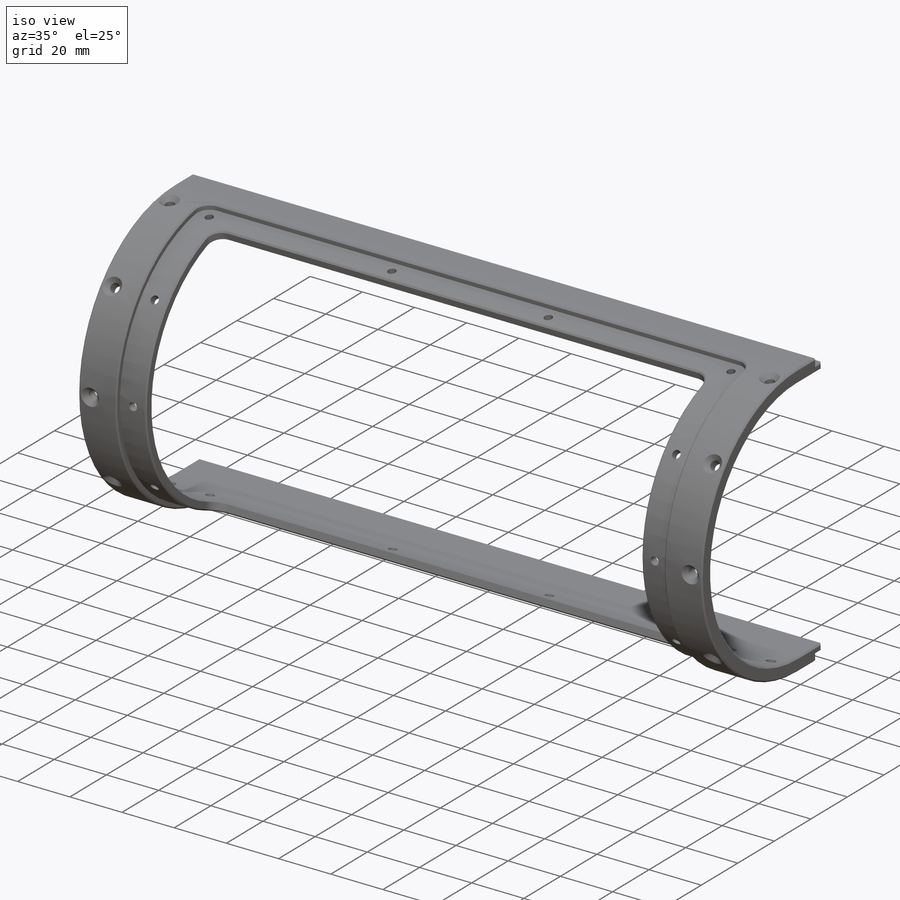
[diagram: iso view]
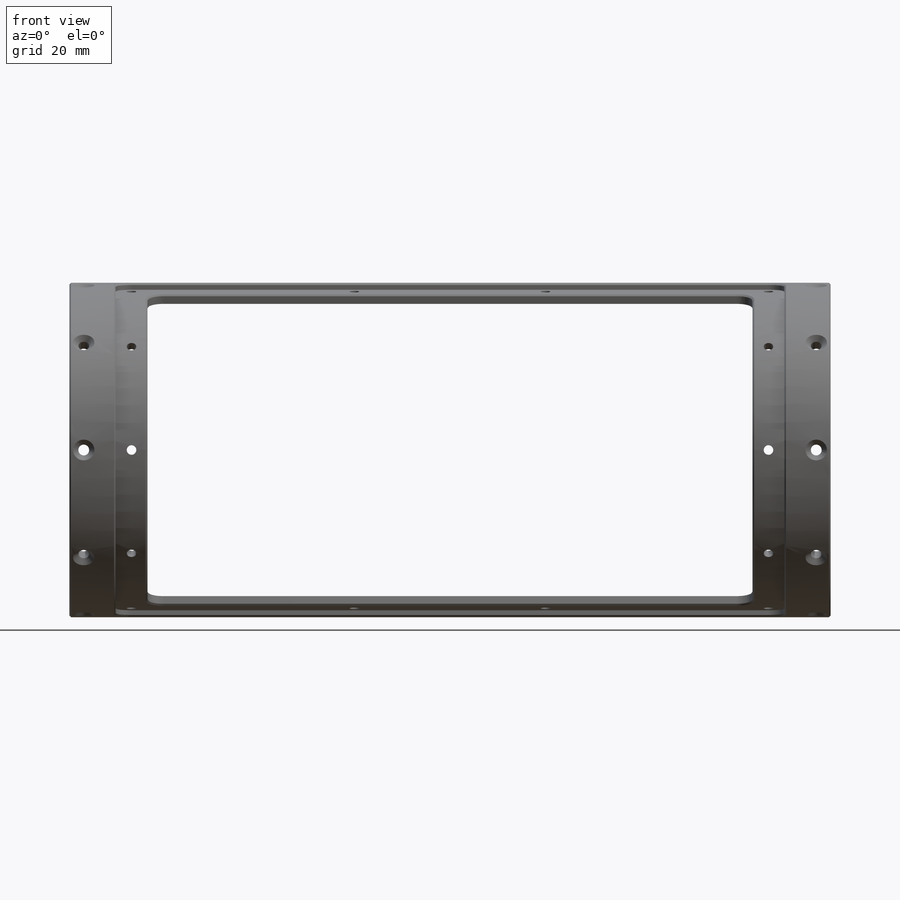
[diagram: front view]
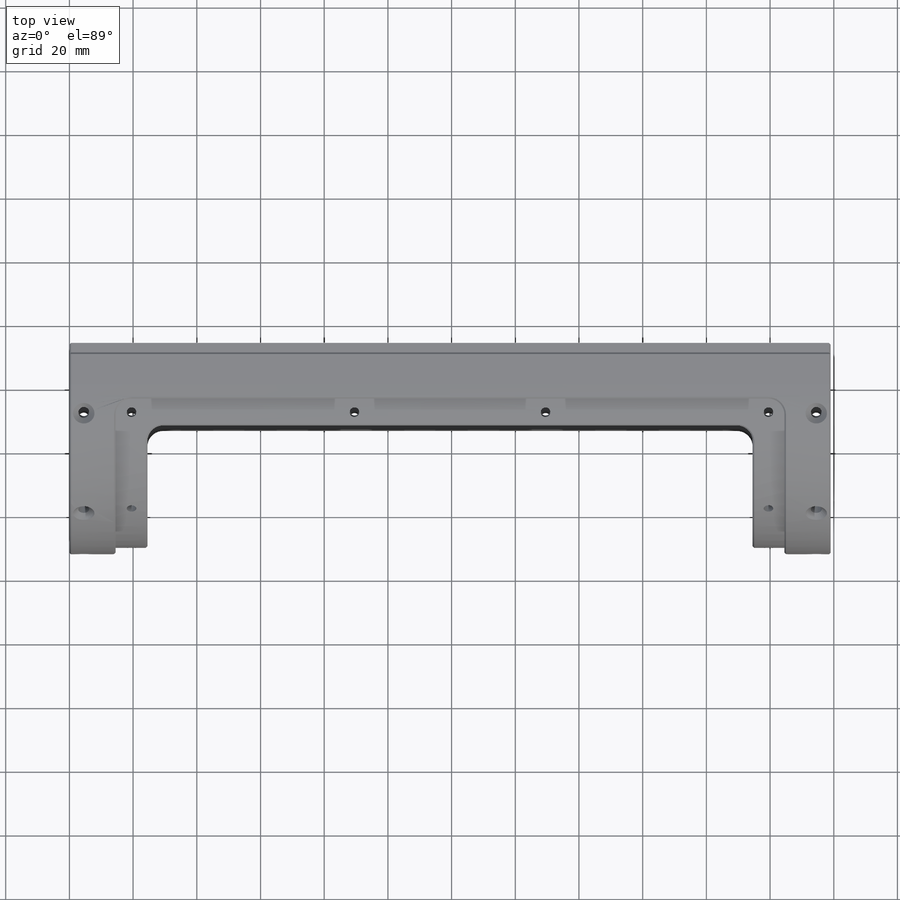
[diagram: top view]
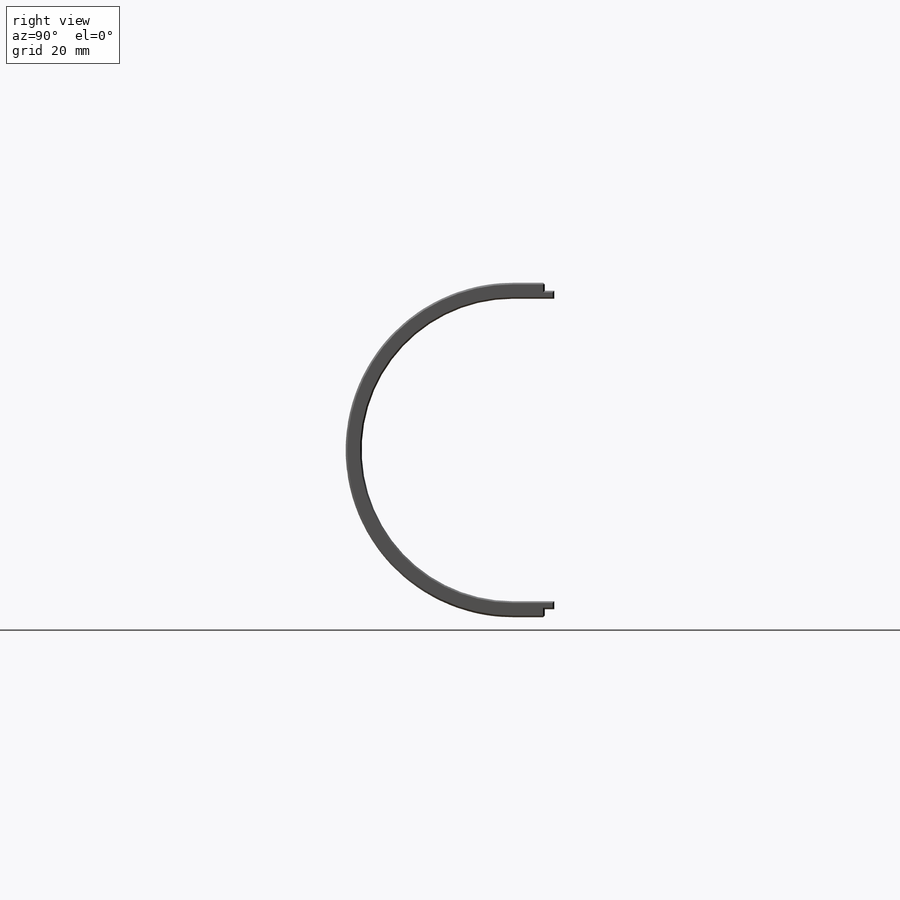
[diagram: right view]
SOLIDWORKS PART (.sldprt)
format: sldprt  version: not decoded by parser v0  size: 675,328 bytes
history: native  units: mm
features: sketch x11, pattern_circular x4, plane x2, cut_extrude x2, hole x2, mirror x2, material x1, extrude x1, pattern_linear x1, fillet x1, chamfer x1 (+12 scaffold rows collapsed)
feature tree (40):
  scaffold x12  (default folders/planes/origin — collapsed)
  material  "2014 Alloy"
  sketch  "Sketch1"  dims[D1=95.0mm D2=10.0mm D4=3.0mm D5=2.5mm D6=2.5mm D7=2.5mm D3=5.0mm]
  extrude  "Boss-Extrude1"  Depth=239mm
  sketch  "Sketch5"  dims[D1=~1.045405mm]
  sketch  "Sketch6"  dims[D1=~7.383575mm]
  plane  "Plane1"
  sketch  "Sketch7"  dims[c1.D1=105.0mm c1.D2=95.0mm c2.D1=~157.210134mm c2.D2=50.0mm c2.D3=100.0mm c3.D1=52.5mm c3.D3=~50.796679mm c4.D3=15.0deg c4.D4=~47.270107mm c5.D4=15.0deg c5.D5=4.0mm]
  cut_extrude  "Cut-Extrude1"  Depth=190mm
  sketch  "Sketch8"  dims[D1=~57.518375mm]
  sketch  "Sketch9"  dims[D1=~16.147352mm]
  plane  "Plane2"
  hole  "CSK for M3 Hex Socket Countersunk Cap Screw1"  Diameter=3.4mm Depth=65.5mm
  sketch  "Sketch11"  dims[D1=4.5mm]
  sketch  "Sketch10"  dims[hole-wizard template sketch: 55 standard entries collapsed; hole parameters kept: c17.Thru Hole Depth=65.5mm c17.Near C'Sink Dia.=6.72mm c17.D4=~3.666174mm c17.Near C'Sink Angle=90.0deg]
  pattern_circular  "CirPattern1"  Count=3 Angle=40deg
  pattern_circular  "CirPattern2"  Count=3 Angle=40deg
  mirror  "Mirror1"
  sketch  "Sketch12"  dims[c1.D1=~99.818455mm c1.D2=105.0mm c2.D1=2.0mm c2.D3=~50.690809mm c3.D3=15.0deg c3.D4=5.0mm c3.D5=~51.773751mm c4.D5=~9.541195deg c5.D5=52.5mm c5.D4=52.5mm c6.D4=5.0deg c6.D5=~50.127758mm c7.D5=5.0deg c7.D6=2.0mm]
  cut_extrude  "Cut-Extrude2"  Depth=210mm
  hole  "Ø3.0mm Dowel Hole2"  Diameter=3mm Depth=17.29mm
  sketch  "Sketch14"  dims[D1=5.0mm]
  sketch  "Sketch13"  dims[hole-wizard template sketch: 50 standard entries collapsed; hole parameters above]
  pattern_circular  "CirPattern3"  Count=3 Angle=40deg
  pattern_circular  "CirPattern4"  Count=3 Angle=40deg
  pattern_linear  "LPattern2"  Count1=2 Count2=1 Spacing1=70mm Spacing2=50mm
  mirror  "Mirror5"
  fillet  "Fillet1"  Radius=5mm
  chamfer  "Chamfer1"  Distance=0.5mm Angle=45deg
decode coverage: 23 of 25 modeling features carry decoded parameters
note: ~ marks probable driven/reference dimensions
note: suppression state not decoded; provenance and decode notes live in map.json
